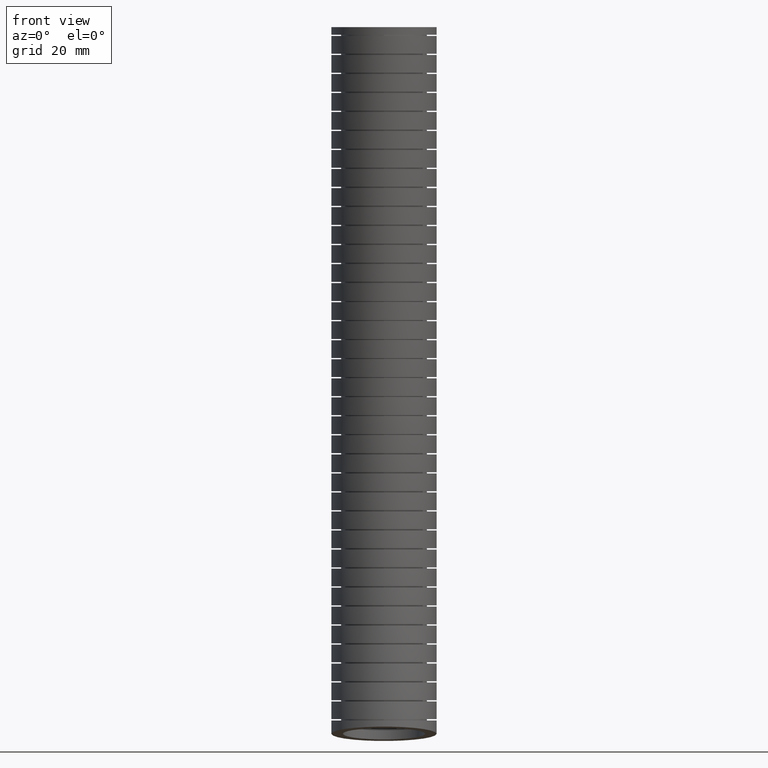
[diagram: clean part render]
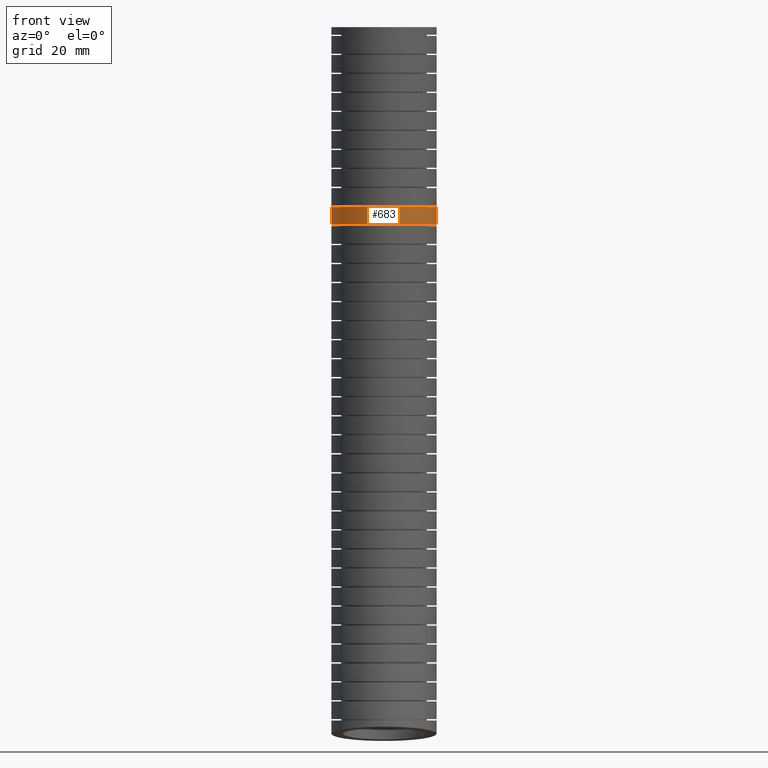
[diagram: same view with one face highlighted and labeled with its STEP entity id]
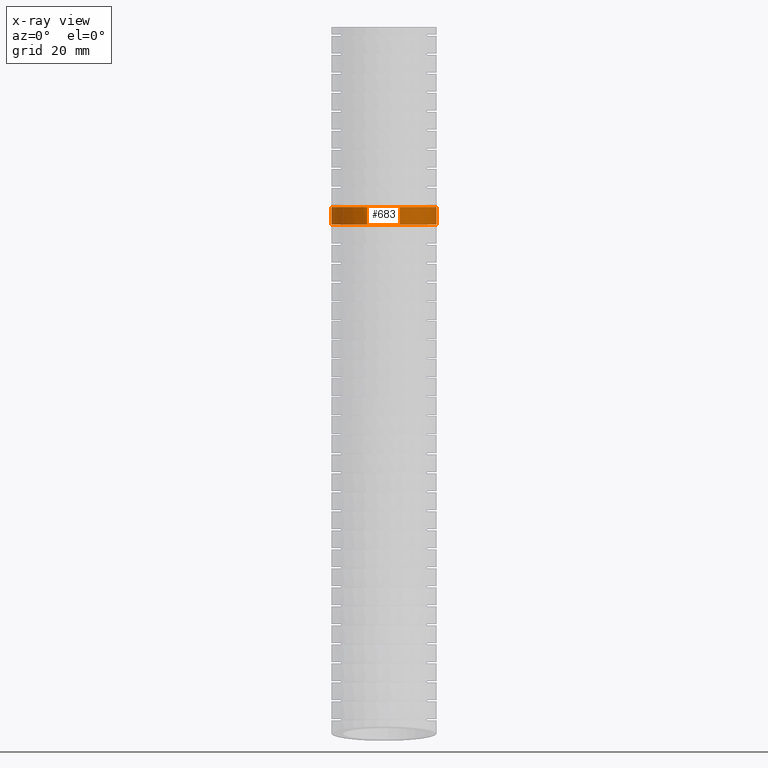
[diagram: x-ray of the same camera — body ghosted, the highlighted face saturated]
A machine part, front view. The second image highlights one B-rep face of the part: STEP entity #683.
The next image is the same camera in x-ray: the body ghosted, the highlighted face saturated — about 0% of this face is hidden behind the body in this view.
In plain terms, the highlighted face is a freeform B-spline surface patch.
Its self-contained STEP definition (entity closure, byte-faithful):
#677 = VERTEX_POINT ( 'NONE', #9962 ) ;
#678 = EDGE_CURVE ( 'NONE', #677, #706, #9961, .T. ) ;
#679 = ORIENTED_EDGE ( 'NONE', *, *, #678, .T. ) ;
#682 = EDGE_LOOP ( 'NONE', ( #679, #698, #701, #705 ) ) ;
#683 = ADVANCED_FACE ( 'NONE', ( #10023 ), #10051, .T. ) ;
#698 = ORIENTED_EDGE ( 'NONE', *, *, #702, .T. ) ;
#699 = VERTEX_POINT ( 'NONE', #10130 ) ;
#700 = EDGE_CURVE ( 'NONE', #703, #699, #10248, .T. ) ;
#701 = ORIENTED_EDGE ( 'NONE', *, *, #700, .T. ) ;
#702 = EDGE_CURVE ( 'NONE', #706, #703, #10273, .T. ) ;
#703 = VERTEX_POINT ( 'NONE', #10271 ) ;
#705 = ORIENTED_EDGE ( 'NONE', *, *, #707, .F. ) ;
#706 = VERTEX_POINT ( 'NONE', #10300 ) ;
#707 = EDGE_CURVE ( 'NONE', #677, #699, #10296, .T. ) ;
#9930 = CARTESIAN_POINT ( 'NONE',  ( -0.1466448487888283300, -0.3293358189864195000, -1.418832748862834100 ) ) ;
#9931 = CARTESIAN_POINT ( 'NONE',  ( -0.1338569190234061800, -0.3339301077315390800, -1.418832748862834300 ) ) ;
#9932 = CARTESIAN_POINT ( 'NONE',  ( -0.1076861103626355100, -0.3418898974315871500, -1.418832748862834300 ) ) ;
#9933 = CARTESIAN_POINT ( 'NONE',  ( -0.09441744097260351700, -0.3452152590440653000, -1.418832748862834300 ) ) ;
#9934 = CARTESIAN_POINT ( 'NONE',  ( -0.05452549095888066500, -0.3531654467491071000, -1.418832748862834500 ) ) ;
#9935 = CARTESIAN_POINT ( 'NONE',  ( -0.02763161190711145200, -0.3558411435122660900, -1.418832748862833600 ) ) ;
#9936 = CARTESIAN_POINT ( 'NONE',  ( 0.01316195880617795600, -0.3558839866083185500, -1.418832748862833600 ) ) ;
#9937 = CARTESIAN_POINT ( 'NONE',  ( 0.02690597792111064400, -0.3552207991614663700, -1.418832748862834500 ) ) ;
#9938 = CARTESIAN_POINT ( 'NONE',  ( 0.05401670232980609200, -0.3525652195900453300, -1.418832748862834500 ) ) ;
#9939 = CARTESIAN_POINT ( 'NONE',  ( 0.06742243353632089400, -0.3505800930143293000, -1.418832748862834500 ) ) ;
#9940 = CARTESIAN_POINT ( 'NONE',  ( 0.1072008287858041700, -0.3426970491252518400, -1.418832748862834900 ) ) ;
#9941 = CARTESIAN_POINT ( 'NONE',  ( 0.1331390076907494300, -0.3348904159036233400, -1.418832748862834500 ) ) ;
#9942 = CARTESIAN_POINT ( 'NONE',  ( 0.1838048134458516200, -0.3139591310460374500, -1.418832748862834500 ) ) ;
#9943 = CARTESIAN_POINT ( 'NONE',  ( 0.2076978598718972300, -0.3011778716704243100, -1.418832748862834900 ) ) ;
#9944 = CARTESIAN_POINT ( 'NONE',  ( 0.2414395725216222600, -0.2786870264772025000, -1.418832748862834500 ) ) ;
#9945 = CARTESIAN_POINT ( 'NONE',  ( 0.2523361254697855700, -0.2706321589038798200, -1.418832748862834500 ) ) ;
#9946 = CARTESIAN_POINT ( 'NONE',  ( 0.2734119961211040600, -0.2533813434400351000, -1.418832748862834300 ) ) ;
#9947 = CARTESIAN_POINT ( 'NONE',  ( 0.2836172578958085500, -0.2441497953878911900, -1.418832748862834500 ) ) ;
#9948 = CARTESIAN_POINT ( 'NONE',  ( 0.3124893063968934800, -0.2153217833369389400, -1.418832748862835200 ) ) ;
#9949 = CARTESIAN_POINT ( 'NONE',  ( 0.3296515037033978500, -0.1944427493861263500, -1.418832748862835200 ) ) ;
#9950 = CARTESIAN_POINT ( 'NONE',  ( 0.3522952055248297900, -0.1606568701566692700, -1.418832748862834500 ) ) ;
#9951 = CARTESIAN_POINT ( 'NONE',  ( 0.3593439138780062400, -0.1489409172468649000, -1.418832748862834300 ) ) ;
#9952 = CARTESIAN_POINT ( 'NONE',  ( 0.3722661992098978400, -0.1248246175103619500, -1.418832748862834500 ) ) ;
#9953 = CARTESIAN_POINT ( 'NONE',  ( 0.3780821137021576100, -0.1125418826790481900, -1.418832748862834300 ) ) ;
#9954 = CARTESIAN_POINT ( 'NONE',  ( 0.3936549798860100000, -0.07504108850481963600, -1.418832748862834500 ) ) ;
#9955 = CARTESIAN_POINT ( 'NONE',  ( 0.4015547883387126100, -0.04917661218459930300, -1.418832748862834300 ) ) ;
#9956 = CARTESIAN_POINT ( 'NONE',  ( 0.4095939568718761600, -0.009053559284537002600, -1.418832748862834500 ) ) ;
#9957 = CARTESIAN_POINT ( 'NONE',  ( 0.4116259033425978500, 0.004540382474691032100, -1.418832748862833800 ) ) ;
#9958 = CARTESIAN_POINT ( 'NONE',  ( 0.4143224813656631900, 0.03172870438324586200, -1.418832748862833800 ) ) ;
#9959 = CARTESIAN_POINT ( 'NONE',  ( 0.4150000000000000900, 0.04537875919297586200, -1.418832748670765300 ) ) ;
#9960 = CARTESIAN_POINT ( 'NONE',  ( 0.4150000000000000900, 0.05908527017593824500, -1.418832748670765700 ) ) ;
#9961 = B_SPLINE_CURVE_WITH_KNOTS ( 'NONE', 3,
 ( #9960, #9959, #9958, #9957, #9956, #9955, #9954, #9953, #9952, #9951, #9950, #9949, #9948, #9947, #9946, #9945, #9944, #9943, #9942, #9941, #9940, #9939, #9938, #9937, #9936, #9935, #9934, #9933, #9932, #9931, #9930, #10007, #10006, #10005, #10004, #10003, #10002, #10001, #10000, #9999, #9998, #9997, #9996, #9995, #9994, #9993, #9992, #9991, #9990 ),
 .UNSPECIFIED., .F., .F.,
 ( 4, 2, 2, 2, 2, 2, 2, 2, 2, 2, 2, 2, 2, 2, 2, 2, 2, 2, 1, 2, 2, 2, 2, 2, 4 ),
 ( 0.0000000000000000000, 0.001040828874025888700, 0.002081657748051777400, 0.004163315496103555700, 0.005204144370129445300, 0.006244973244155334000, 0.008326630992207118300, 0.009367459866233010500, 0.01040828874025890300, 0.01248994648831068900, 0.01457160423636247500, 0.01561243311038837100, 0.01665326198441426100, 0.01873491973246604900, 0.01977574860649194600, 0.02081657748051784400, 0.02289823522856963100, 0.02393906410259552900, 0.02497989297662142300, 0.02602072185064732000, 0.02706155072467321400, 0.02914320847272500500, 0.03018403734675090300, 0.03122486622077680000, 0.03330652396882859100 ),
 .UNSPECIFIED. ) ;
#9962 = CARTESIAN_POINT ( 'NONE',  ( 0.4150000000000000900, 0.05908527017593824500, -1.418832748670765700 ) ) ;
#9990 = CARTESIAN_POINT ( 'NONE',  ( -0.4150000000000000900, 0.05908527018941434800, -1.418832748862834900 ) ) ;
#9991 = CARTESIAN_POINT ( 'NONE',  ( -0.4150000000000002000, 0.03190391831587347700, -1.418832748862835200 ) ) ;
#9992 = CARTESIAN_POINT ( 'NONE',  ( -0.4123544854977402300, 0.005008567995279124100, -1.418832748862836100 ) ) ;
#9993 = CARTESIAN_POINT ( 'NONE',  ( -0.4044408940474561500, -0.03490793645946906700, -1.418832748862835600 ) ) ;
#9994 = CARTESIAN_POINT ( 'NONE',  ( -0.4011224554284133500, -0.04820012482610562500, -1.418832748862834900 ) ) ;
#9995 = CARTESIAN_POINT ( 'NONE',  ( -0.3931930462554477600, -0.07435860210097242100, -1.418832748862834300 ) ) ;
#9996 = CARTESIAN_POINT ( 'NONE',  ( -0.3886134449163671200, -0.08714452898895123900, -1.418832748862835400 ) ) ;
#9997 = CARTESIAN_POINT ( 'NONE',  ( -0.3730846569646455400, -0.1246484698544244300, -1.418832748862835600 ) ) ;
#9998 = CARTESIAN_POINT ( 'NONE',  ( -0.3603625323421715300, -0.1485207751057965900, -1.418832748862835600 ) ) ;
#9999 = CARTESIAN_POINT ( 'NONE',  ( -0.3376285760975455400, -0.1825877804074214100, -1.418832748862835400 ) ) ;
#10000 = CARTESIAN_POINT ( 'NONE',  ( -0.3294526169031309900, -0.1936133243041042700, -1.418832748862835600 ) ) ;
#10001 = CARTESIAN_POINT ( 'NONE',  ( -0.3122329591102466200, -0.2146003217238224600, -1.418832748862836300 ) ) ;
#10002 = CARTESIAN_POINT ( 'NONE',  ( -0.2940666872066834400, -0.2346461917200622100, -1.418832748862833800 ) ) ;
#10003 = CARTESIAN_POINT ( 'NONE',  ( -0.2740329311298281800, -0.2528354017018692400, -1.418832748862834900 ) ) ;
#10004 = CARTESIAN_POINT ( 'NONE',  ( -0.2530512592026129000, -0.2700821900655545100, -1.418832748862834900 ) ) ;
#10005 = CARTESIAN_POINT ( 'NONE',  ( -0.2420216057155797600, -0.2782753761935487500, -1.418832748862834300 ) ) ;
#10006 = CARTESIAN_POINT ( 'NONE',  ( -0.2079985067863008900, -0.3010233573532947200, -1.418832748862834100 ) ) ;
#10007 = CARTESIAN_POINT ( 'NONE',  ( -0.1841439112936553700, -0.3137669753124464100, -1.418832748862834100 ) ) ;
#10023 = FACE_OUTER_BOUND ( 'NONE', #682, .T. ) ;
#10047 = CARTESIAN_POINT ( 'NONE',  ( 0.4149999999999999200, 0.1218071073635319700, -2.711443563840852700 ) ) ;
#10048 = CARTESIAN_POINT ( 'NONE',  ( 0.4150000000000000900, 0.04680663936954134600, -1.041922460934817000 ) ) ;
#10049 = CARTESIAN_POINT ( 'NONE',  ( 0.4150000000000000900, 0.0000000000000000000, 0.0000000000000000000 ) ) ;
#10051 =( BOUNDED_SURFACE ( )  B_SPLINE_SURFACE ( 3, 3, ( 
 ( #10049, #10048, #10047, #10093, #10092, #10091 ),
 ( #10090, #10089, #10088, #10087, #10086, #10085 ),
 ( #10084, #10083, #10082, #10081, #10080, #10079 ),
 ( #10078, #10077, #10076, #10075, #10074, #10073 ),
 ( #10072, #10071, #10070, #10069, #10068, #10067 ),
 ( #10066, #10065, #10064, #10063, #10062, #10061 ),
 ( #10060, #10059, #10058, #10057, #10056, #10055 ) ),
 .UNSPECIFIED., .F., .F., .F. ) 
 B_SPLINE_SURFACE_WITH_KNOTS ( ( 4, 3, 4 ),
 ( 4, 1, 1, 4 ),
 ( 0.0000000000000000000, 0.5000000000000000000, 1.000000000000000000 ),
 ( 0.0000000000000000000, 0.5600000000000000500, 0.8973141982067990300, 1.000000000000000000 ),
 .UNSPECIFIED. ) 
 GEOMETRIC_REPRESENTATION_ITEM ( )  RATIONAL_B_SPLINE_SURFACE ( (
 ( 1.000000000000000000, 1.000000000000000000, 1.000000000000000000, 1.000000000000000000, 1.000000000000000000, 1.000000000000000000),
 ( 0.3333333333333333100, 0.3333333333333333100, 0.3333333333333333100, 0.3333333333333333100, 0.3333333333333332600, 0.3333333333333333100),
 ( 0.3333333333333333100, 0.3333333333333333100, 0.3333333333333333100, 0.3333333333333333100, 0.3333333333333332600, 0.3333333333333333100),
 ( 1.000000000000000000, 1.000000000000000000, 1.000000000000000000, 1.000000000000000000, 1.000000000000000000, 1.000000000000000000),
 ( 0.3333333333333333100, 0.3333333333333333100, 0.3333333333333333100, 0.3333333333333333100, 0.3333333333333332600, 0.3333333333333333100),
 ( 0.3333333333333333100, 0.3333333333333333100, 0.3333333333333333100, 0.3333333333333333100, 0.3333333333333332600, 0.3333333333333333100),
 ( 1.000000000000000000, 1.000000000000000000, 1.000000000000000000, 1.000000000000000000, 1.000000000000000000, 1.000000000000000000) ) ) 
 REPRESENTATION_ITEM ( '' )  SURFACE ( )  );
#10055 = CARTESIAN_POINT ( 'NONE',  ( 0.4150000000000000400, -0.03000000000000001600, -5.569999999999998500 ) ) ;
#10056 = CARTESIAN_POINT ( 'NONE',  ( 0.4150000000000000900, -0.01243844818931303500, -5.380037381098891700 ) ) ;
#10057 = CARTESIAN_POINT ( 'NONE',  ( 0.4150000000000000900, 0.06281132015026588700, -4.566063580857106200 ) ) ;
#10058 = CARTESIAN_POINT ( 'NONE',  ( 0.4149999999999999200, 0.1218071073635319700, -2.711443563840852700 ) ) ;
#10059 = CARTESIAN_POINT ( 'NONE',  ( 0.4150000000000000900, 0.04680663936954134600, -1.041922460934817000 ) ) ;
#10060 = CARTESIAN_POINT ( 'NONE',  ( 0.4150000000000000900, 0.0000000000000000000, 0.0000000000000000000 ) ) ;
#10061 = CARTESIAN_POINT ( 'NONE',  ( 0.4150000000000000400, 0.7922141346493595200, -5.683419208173947200 ) ) ;
#10062 = CARTESIAN_POINT ( 'NONE',  ( 0.4150000000000002000, 0.8104118928973711400, -5.486989566509566700 ) ) ;
#10063 = CARTESIAN_POINT ( 'NONE',  ( 0.4150000000000000400, 0.8883877521622221000, -4.645305119166129900 ) ) ;
#10064 = CARTESIAN_POINT ( 'NONE',  ( 0.4150000000000000400, 0.9528682252578860600, -2.732677208711230800 ) ) ;
#10065 = CARTESIAN_POINT ( 'NONE',  ( 0.4150000000000000900, 0.8772143935941071300, -1.050081882658727000 ) ) ;
#10066 = CARTESIAN_POINT ( 'NONE',  ( 0.4150000000000000900, 0.8300000000000001800, 0.0000000000000000000 ) ) ;
#10067 = CARTESIAN_POINT ( 'NONE',  ( -0.4149999999999999200, 0.7922141346493595200, -5.683419208173947200 ) ) ;
#10068 = CARTESIAN_POINT ( 'NONE',  ( -0.4150000000000000400, 0.8104118928973711400, -5.486989566509566700 ) ) ;
#10069 = CARTESIAN_POINT ( 'NONE',  ( -0.4149999999999999200, 0.8883877521622221000, -4.645305119166129900 ) ) ;
#10070 = CARTESIAN_POINT ( 'NONE',  ( -0.4149999999999999200, 0.9528682252578860600, -2.732677208711230800 ) ) ;
#10071 = CARTESIAN_POINT ( 'NONE',  ( -0.4149999999999999200, 0.8772143935941071300, -1.050081882658727000 ) ) ;
#10072 = CARTESIAN_POINT ( 'NONE',  ( -0.4150000000000000400, 0.8300000000000001800, 0.0000000000000000000 ) ) ;
#10073 = CARTESIAN_POINT ( 'NONE',  ( -0.4150000000000000400, -0.02999999999999996800, -5.569999999999998500 ) ) ;
#10074 = CARTESIAN_POINT ( 'NONE',  ( -0.4150000000000000900, -0.01243844818931298000, -5.380037381098891700 ) ) ;
#10075 = CARTESIAN_POINT ( 'NONE',  ( -0.4150000000000000900, 0.06281132015026594200, -4.566063580857106200 ) ) ;
#10076 = CARTESIAN_POINT ( 'NONE',  ( -0.4149999999999999200, 0.1218071073635320100, -2.711443563840852700 ) ) ;
#10077 = CARTESIAN_POINT ( 'NONE',  ( -0.4150000000000000900, 0.04680663936954139500, -1.041922460934817000 ) ) ;
#10078 = CARTESIAN_POINT ( 'NONE',  ( -0.4150000000000000900, 5.082284216461516900E-017, 0.0000000000000000000 ) ) ;
#10079 = CARTESIAN_POINT ( 'NONE',  ( -0.4150000000000000900, -0.8522141346493592500, -5.456580791826050700 ) ) ;
#10080 = CARTESIAN_POINT ( 'NONE',  ( -0.4150000000000002000, -0.8352887892759974800, -5.273085195688222100 ) ) ;
#10081 = CARTESIAN_POINT ( 'NONE',  ( -0.4150000000000000900, -0.7627651118616902700, -4.486822042548080700 ) ) ;
#10082 = CARTESIAN_POINT ( 'NONE',  ( -0.4150000000000000400, -0.7092540105308221500, -2.690209918970475100 ) ) ;
#10083 = CARTESIAN_POINT ( 'NONE',  ( -0.4150000000000000900, -0.7836011148550242600, -1.033763039210906500 ) ) ;
#10084 = CARTESIAN_POINT ( 'NONE',  ( -0.4150000000000000900, -0.8300000000000001800, 0.0000000000000000000 ) ) ;
#10085 = CARTESIAN_POINT ( 'NONE',  ( 0.4150000000000000400, -0.8522141346493592500, -5.456580791826050700 ) ) ;
#10086 = CARTESIAN_POINT ( 'NONE',  ( 0.4150000000000002000, -0.8352887892759974800, -5.273085195688222100 ) ) ;
#10087 = CARTESIAN_POINT ( 'NONE',  ( 0.4150000000000000400, -0.7627651118616902700, -4.486822042548080700 ) ) ;
#10088 = CARTESIAN_POINT ( 'NONE',  ( 0.4150000000000000400, -0.7092540105308221500, -2.690209918970475100 ) ) ;
#10089 = CARTESIAN_POINT ( 'NONE',  ( 0.4150000000000000900, -0.7836011148550242600, -1.033763039210906500 ) ) ;
#10090 = CARTESIAN_POINT ( 'NONE',  ( 0.4150000000000000900, -0.8300000000000001800, 0.0000000000000000000 ) ) ;
#10091 = CARTESIAN_POINT ( 'NONE',  ( 0.4150000000000000400, -0.03000000000000001600, -5.569999999999998500 ) ) ;
#10092 = CARTESIAN_POINT ( 'NONE',  ( 0.4150000000000000900, -0.01243844818931303500, -5.380037381098891700 ) ) ;
#10093 = CARTESIAN_POINT ( 'NONE',  ( 0.4150000000000000900, 0.06281132015026588700, -4.566063580857106200 ) ) ;
#10130 = CARTESIAN_POINT ( 'NONE',  ( 0.4150000000000000900, 0.06385324110268690600, -1.558745690378915900 ) ) ;
#10207 = CARTESIAN_POINT ( 'NONE',  ( 0.3728549381721512100, -0.1203823422956141500, -1.558745690570982700 ) ) ;
#10208 = CARTESIAN_POINT ( 'NONE',  ( 0.3600581805433293300, -0.1442369285424041400, -1.558745690570981100 ) ) ;
#10209 = CARTESIAN_POINT ( 'NONE',  ( 0.3375128818343382000, -0.1779630419444214700, -1.558745690570980400 ) ) ;
#10210 = CARTESIAN_POINT ( 'NONE',  ( 0.3294353344237387300, -0.1888599438864295400, -1.558745690570981300 ) ) ;
#10211 = CARTESIAN_POINT ( 'NONE',  ( 0.3121257964460384400, -0.2099453447842401000, -1.558745690570981300 ) ) ;
#10212 = CARTESIAN_POINT ( 'NONE',  ( 0.3028899060773459500, -0.2201230998116762700, -1.558745690570982400 ) ) ;
#10213 = CARTESIAN_POINT ( 'NONE',  ( 0.2740579464955560400, -0.2489171964910180700, -1.558745690570982400 ) ) ;
#10214 = CARTESIAN_POINT ( 'NONE',  ( 0.2531605326214996200, -0.2660532163374965100, -1.558745690570981100 ) ) ;
#10215 = CARTESIAN_POINT ( 'NONE',  ( 0.2193062527530311200, -0.2886745562554331500, -1.558745690570981100 ) ) ;
#10216 = CARTESIAN_POINT ( 'NONE',  ( 0.2075370420324306700, -0.2957300715233722700, -1.558745690570981100 ) ) ;
#10217 = CARTESIAN_POINT ( 'NONE',  ( 0.1834454669322084800, -0.3085935636873272100, -1.558745690570981100 ) ) ;
#10218 = CARTESIAN_POINT ( 'NONE',  ( 0.1711695405374001100, -0.3143861138708719000, -1.558745690570982000 ) ) ;
#10219 = CARTESIAN_POINT ( 'NONE',  ( 0.1336706404227868400, -0.3298997690299677000, -1.558745690570981600 ) ) ;
#10220 = CARTESIAN_POINT ( 'NONE',  ( 0.1077829811874375500, -0.3377747525659021100, -1.558745690570982700 ) ) ;
#10221 = CARTESIAN_POINT ( 'NONE',  ( 0.06757802941453366900, -0.3457725225939858300, -1.558745690570982700 ) ) ;
#10222 = CARTESIAN_POINT ( 'NONE',  ( 0.05401877063711105200, -0.3477762769825728000, -1.558745690570982200 ) ) ;
#10223 = CARTESIAN_POINT ( 'NONE',  ( 0.02701484970865779300, -0.3504249317726002600, -1.558745690570982000 ) ) ;
#10224 = CARTESIAN_POINT ( 'NONE',  ( -3.442390550146842300E-008, -0.3517411705278538100, -1.558745690570982700 ) ) ;
#10225 = CARTESIAN_POINT ( 'NONE',  ( -0.02703658446280110200, -0.3504242373828794800, -1.558745690570981600 ) ) ;
#10226 = CARTESIAN_POINT ( 'NONE',  ( -0.05408415090900650000, -0.3477684221377768100, -1.558745690570982000 ) ) ;
#10227 = CARTESIAN_POINT ( 'NONE',  ( -0.06768798284195969000, -0.3457533004821124500, -1.558745690570980900 ) ) ;
#10228 = CARTESIAN_POINT ( 'NONE',  ( -0.1077966245491694300, -0.3377667145962310300, -1.558745690570980900 ) ) ;
#10229 = CARTESIAN_POINT ( 'NONE',  ( -0.1336682281412027700, -0.3299022898991924000, -1.558745690570980900 ) ) ;
#10230 = CARTESIAN_POINT ( 'NONE',  ( -0.1837114615721603900, -0.3091958765729555000, -1.558745690570980400 ) ) ;
#10231 = CARTESIAN_POINT ( 'NONE',  ( -0.2080853028777490700, -0.2961752382056306900, -1.558745690570982200 ) ) ;
#10232 = CARTESIAN_POINT ( 'NONE',  ( -0.2531575818312342700, -0.2660523111283666900, -1.558745690570981600 ) ) ;
#10233 = CARTESIAN_POINT ( 'NONE',  ( -0.2740629165448628100, -0.2489172256310604500, -1.558745690570980900 ) ) ;
#10234 = CARTESIAN_POINT ( 'NONE',  ( -0.3029446428315530900, -0.2200659311823282300, -1.558745690570980900 ) ) ;
#10235 = CARTESIAN_POINT ( 'NONE',  ( -0.3121903249236570600, -0.2098703179702801600, -1.558745690570982200 ) ) ;
#10236 = CARTESIAN_POINT ( 'NONE',  ( -0.3294588488862491600, -0.1888277039893819500, -1.558745690570982400 ) ) ;
#10237 = CARTESIAN_POINT ( 'NONE',  ( -0.3375255576641970600, -0.1779449744297175700, -1.558745690570980400 ) ) ;
#10238 = CARTESIAN_POINT ( 'NONE',  ( -0.3600582893509545700, -0.1442349750628642800, -1.558745690570980900 ) ) ;
#10239 = CARTESIAN_POINT ( 'NONE',  ( -0.3728919565481980700, -0.1203114437685228500, -1.558745690570982400 ) ) ;
#10240 = CARTESIAN_POINT ( 'NONE',  ( -0.3938670729089949800, -0.06970826289617643200, -1.558745690570982200 ) ) ;
#10241 = CARTESIAN_POINT ( 'NONE',  ( -0.4017043945724610400, -0.04378699163626944400, -1.558745690570980200 ) ) ;
#10242 = CARTESIAN_POINT ( 'NONE',  ( -0.4096351256961402500, -0.004010660831506304900, -1.558745690570980400 ) ) ;
#10243 = CARTESIAN_POINT ( 'NONE',  ( -0.4116364564083460600, 0.009398286751076881700, -1.558745690570982200 ) ) ;
#10244 = CARTESIAN_POINT ( 'NONE',  ( -0.4143231714685133300, 0.03652387774707886700, -1.558745690570982400 ) ) ;
#10245 = CARTESIAN_POINT ( 'NONE',  ( -0.4150000000000001500, 0.05026210601727193500, -1.558745690570981100 ) ) ;
#10247 = CARTESIAN_POINT ( 'NONE',  ( -0.4150000000000000900, 0.06385324111537978000, -1.558745690570981600 ) ) ;
#10248 = B_SPLINE_CURVE_WITH_KNOTS ( 'NONE', 3,
 ( #10247, #10245, #10244, #10243, #10242, #10241, #10240, #10239, #10238, #10237, #10236, #10235, #10234, #10233, #10232, #10231, #10230, #10229, #10228, #10227, #10226, #10225, #10224, #10223, #10222, #10221, #10220, #10219, #10218, #10217, #10216, #10215, #10214, #10213, #10212, #10211, #10210, #10209, #10208, #10207, #10283, #10281, #10280, #10279, #10278, #10277, #10276, #10275 ),
 .UNSPECIFIED., .F., .F.,
 ( 4, 2, 2, 2, 2, 2, 2, 2, 2, 2, 2, 1, 2, 2, 2, 2, 2, 2, 2, 2, 2, 2, 1, 2, 4 ),
 ( 0.03330587355320632800, 0.03434673843610114300, 0.03538760331899595800, 0.03746933308478558900, 0.03955106285057522600, 0.04059192773347004200, 0.04163279261636485700, 0.04371452238215449400, 0.04579625214794413900, 0.04787798191373377600, 0.04891884679662859800, 0.04995971167952341400, 0.05100057656241823600, 0.05204144144531305800, 0.05412317121110269600, 0.05516403609399751800, 0.05620490097689234000, 0.05828663074268197700, 0.05932749562557680000, 0.06036836050847162200, 0.06245009027426125200, 0.06349095515715608200, 0.06453182004005089700, 0.06557268492294571200, 0.06661354980584054100 ),
 .UNSPECIFIED. ) ;
#10265 = CARTESIAN_POINT ( 'NONE',  ( -0.4150000000000000900, 0.06385324111537978000, -1.558745690570981600 ) ) ;
#10266 = CARTESIAN_POINT ( 'NONE',  ( -0.4149999999999999200, 0.06231226543439481700, -1.512110062923618200 ) ) ;
#10267 = CARTESIAN_POINT ( 'NONE',  ( -0.4150000000000000400, 0.06072145016293117200, -1.465472353379295000 ) ) ;
#10268 = CARTESIAN_POINT ( 'NONE',  ( -0.4150000000000000900, 0.05908527018941434800, -1.418832748862834900 ) ) ;
#10271 = CARTESIAN_POINT ( 'NONE',  ( -0.4150000000000000900, 0.06385324111537978000, -1.558745690570981600 ) ) ;
#10273 = B_SPLINE_CURVE_WITH_KNOTS ( 'NONE', 3,
 ( #10268, #10267, #10266, #10265 ),
 .UNSPECIFIED., .F., .F.,
 ( 4, 4 ),
 ( 0.2542272988699750300, 0.2793049196998993500 ),
 .UNSPECIFIED. ) ;
#10275 = CARTESIAN_POINT ( 'NONE',  ( 0.4150000000000000900, 0.06385324110268690600, -1.558745690378915900 ) ) ;
#10276 = CARTESIAN_POINT ( 'NONE',  ( 0.4150000000000000400, 0.05014625439181930700, -1.558745690378915200 ) ) ;
#10277 = CARTESIAN_POINT ( 'NONE',  ( 0.4143160725992635100, 0.03643057354307487800, -1.558745690570982400 ) ) ;
#10278 = CARTESIAN_POINT ( 'NONE',  ( 0.4116306927870671500, 0.009361832729434806400, -1.558745690570982900 ) ) ;
#10279 = CARTESIAN_POINT ( 'NONE',  ( 0.4076325793057334900, -0.01742303324321550800, -1.558745690570980400 ) ) ;
#10280 = CARTESIAN_POINT ( 'NONE',  ( 0.4010588634949106600, -0.04365093269712756700, -1.558745690570981100 ) ) ;
#10281 = CARTESIAN_POINT ( 'NONE',  ( 0.3931848412881965300, -0.06959764467177465000, -1.558745690570981100 ) ) ;
#10283 = CARTESIAN_POINT ( 'NONE',  ( 0.3885805095706865700, -0.08247142761984413400, -1.558745690570982700 ) ) ;
#10296 = B_SPLINE_CURVE_WITH_KNOTS ( 'NONE', 3,
 ( #10350, #10349, #10348, #10347 ),
 .UNSPECIFIED., .F., .F.,
 ( 4, 4 ),
 ( 0.2542272988355082600, 0.2793049196654349700 ),
 .UNSPECIFIED. ) ;
#10300 = CARTESIAN_POINT ( 'NONE',  ( -0.4150000000000000900, 0.05908527018941434800, -1.418832748862834900 ) ) ;
#10347 = CARTESIAN_POINT ( 'NONE',  ( 0.4150000000000000900, 0.06385324110268690600, -1.558745690378915900 ) ) ;
#10348 = CARTESIAN_POINT ( 'NONE',  ( 0.4150000000000000900, 0.06231226542790428000, -1.512110062731332200 ) ) ;
#10349 = CARTESIAN_POINT ( 'NONE',  ( 0.4150000000000000900, 0.06072145015630964200, -1.465472353186999300 ) ) ;
#10350 = CARTESIAN_POINT ( 'NONE',  ( 0.4150000000000000900, 0.05908527017593824500, -1.418832748670765700 ) ) ;